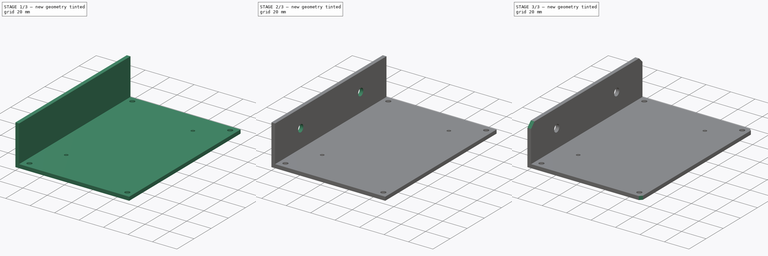
[diagram: build sequence overview — one tinted view per stage of 3, left to right]
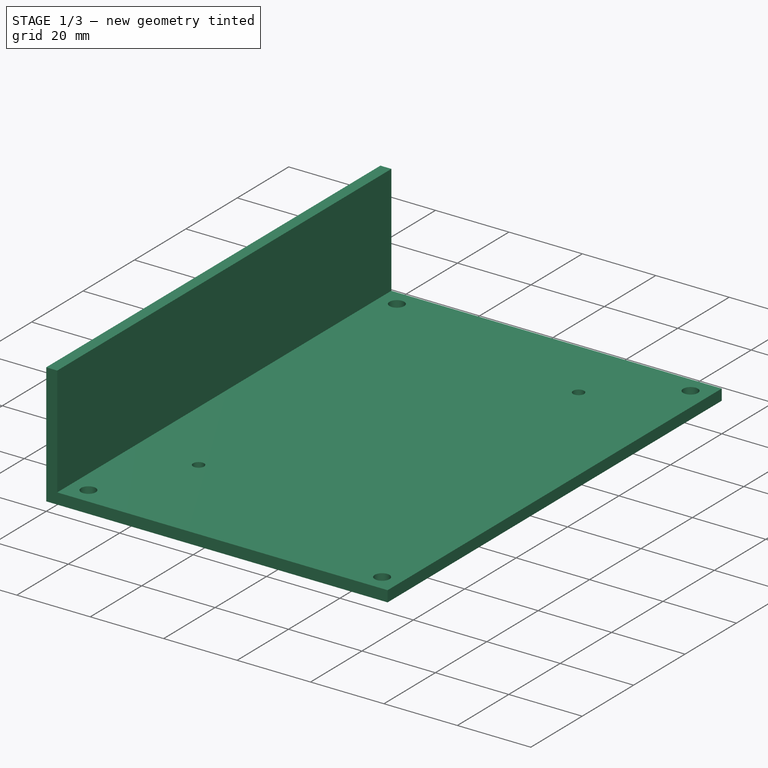
[diagram: stage 1 of 3 — iso view after this stage's code; geometry added in this stage tinted green]
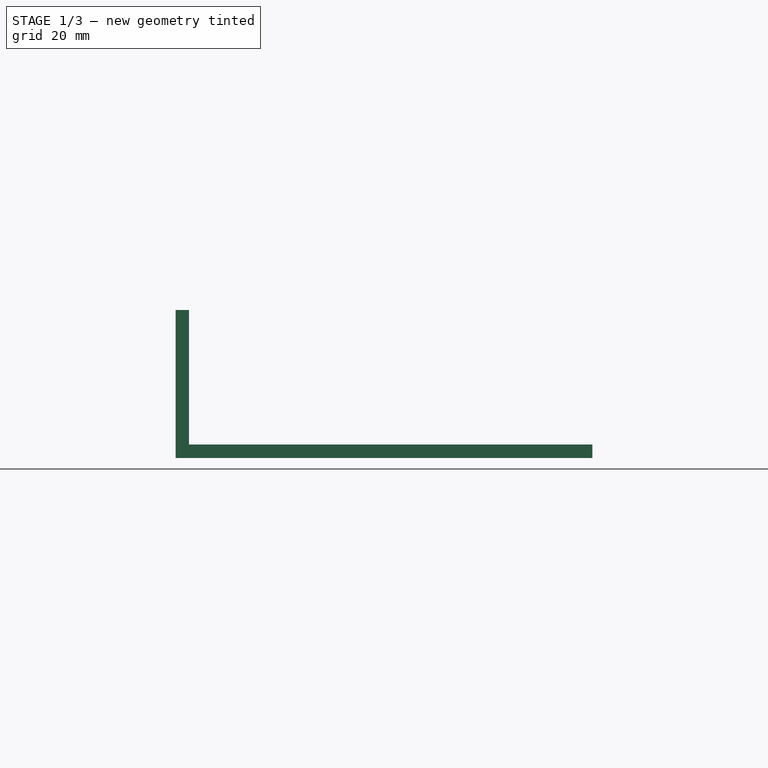
[diagram: stage 1 of 3 — front view after this stage's code; geometry added in this stage tinted green]
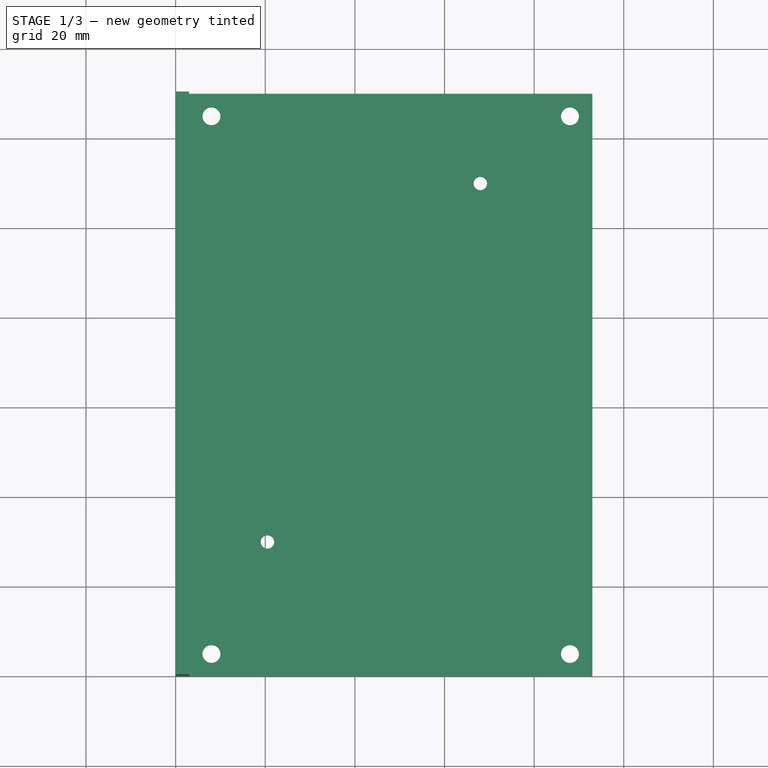
[diagram: stage 1 of 3 — top view after this stage's code; geometry added in this stage tinted green]
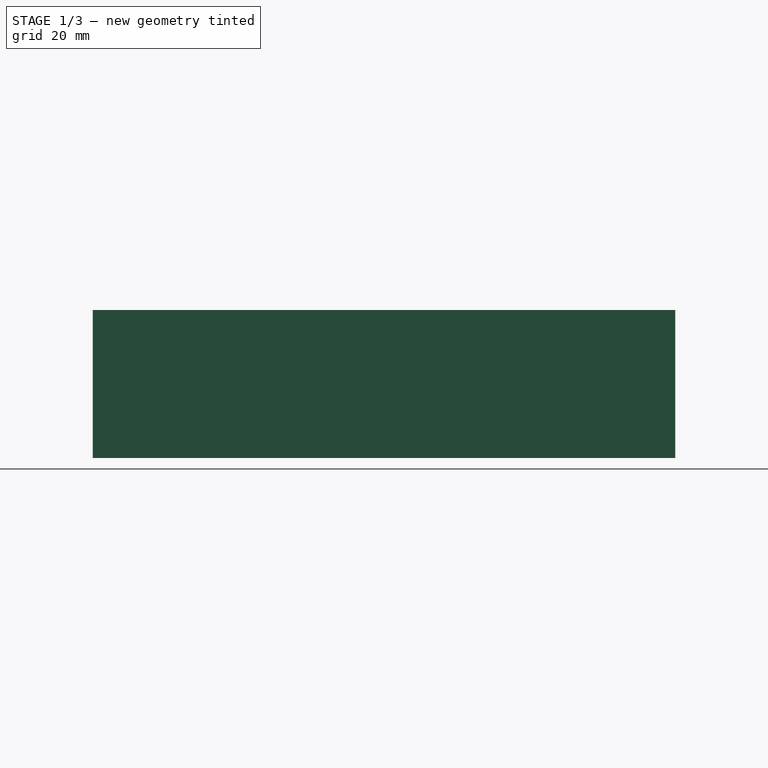
[diagram: stage 1 of 3 — right view after this stage's code; geometry added in this stage tinted green]
FCSTD DOCUMENT  (FreeCAD 0.18R14555 (Git shallow))
Label: controller-mount
License: All rights reserved
LicenseURL: http://en.wikipedia.org/wiki/All_rights_reserved
objects: Sketcher::SketchObject×3, PartDesign::Pad×2, PartDesign::Chamfer×2, PartDesign::Pocket×1, PartDesign::Body×1
note: 12 computed .brp shape members not serialized (recipe doc carries the construction recipe); baked Part::Feature solids carry a one-line shape summary decoded from their .brp

FEATURE [Sketcher::SketchObject] Sketch
  MapMode = 5
  Support = -> [XY_Plane]
  sketch-geometry (22):
    g0: LineSegment [constr] StartX=18 StartY=15 StartZ=0 EndX=78 EndY=15 EndZ=0
    g1: LineSegment [constr] StartX=78 StartY=15 StartZ=0 EndX=78 EndY=115 EndZ=0
    g2: LineSegment [constr] StartX=78 StartY=115 StartZ=0 EndX=18 EndY=115 EndZ=0
    g3: LineSegment [constr] StartX=18 StartY=115 StartZ=0 EndX=18 EndY=15 EndZ=0
    g4: Circle CenterX=20.5 CenterY=30 CenterZ=0 NormalX=0 NormalY=0 NormalZ=1 AngleXU=0 Radius=1.5
    g5: Circle CenterX=68 CenterY=110 CenterZ=0 NormalX=0 NormalY=0 NormalZ=1 AngleXU=0 Radius=1.5
    g6: LineSegment StartX=93 StartY=0 StartZ=0 EndX=0 EndY=0 EndZ=0
    g7: LineSegment StartX=0 StartY=0 StartZ=0 EndX=0 EndY=130 EndZ=0
    g8: LineSegment StartX=0 StartY=130 StartZ=0 EndX=93 EndY=130 EndZ=0
    g9: LineSegment StartX=93 StartY=130 StartZ=0 EndX=93 EndY=0 EndZ=0
    g10: LineSegment [constr] StartX=3 StartY=130 StartZ=0 EndX=3 EndY=0 EndZ=0
    g11: LineSegment [constr] StartX=78 StartY=115 StartZ=0 EndX=93 EndY=130 EndZ=0
    g12: LineSegment [constr] StartX=18 StartY=115 StartZ=0 EndX=3 EndY=130 EndZ=0
    g13: LineSegment [constr] StartX=78 StartY=15 StartZ=0 EndX=93 EndY=0 EndZ=0
    g14: LineSegment [constr] StartX=8 StartY=125 StartZ=0 EndX=88 EndY=125 EndZ=0
    g15: LineSegment [constr] StartX=88 StartY=125 StartZ=0 EndX=88 EndY=5 EndZ=0
    g16: LineSegment [constr] StartX=88 StartY=5 StartZ=0 EndX=8 EndY=5 EndZ=0
    g17: LineSegment [constr] StartX=8 StartY=5 StartZ=0 EndX=8 EndY=125 EndZ=0
    g18: Circle CenterX=8 CenterY=125 CenterZ=0 NormalX=0 NormalY=0 NormalZ=1 AngleXU=0 Radius=2
    g19: Circle CenterX=88 CenterY=125 CenterZ=0 NormalX=0 NormalY=0 NormalZ=1 AngleXU=0 Radius=2
    g20: Circle CenterX=88 CenterY=5 CenterZ=0 NormalX=0 NormalY=0 NormalZ=1 AngleXU=0 Radius=2
    g21: Circle CenterX=8 CenterY=5 CenterZ=0 NormalX=0 NormalY=0 NormalZ=1 AngleXU=0 Radius=2
  constraints (59):
    c: Coincident(g0,g1)
    c: Coincident(g1,g2)
    c: Coincident(g2,g3)
    c: Coincident(g3,g0)
    c: Horizontal(g0)
    c: Horizontal(g2)
    c: Vertical(g1)
    c: Vertical(g3)
    c: DistanceX(g2,g2) = 60
    c: DistanceY(g1,g1) = 100
    c: DistanceY(g5,g1) = 5
    c: DistanceX(g5,g1) = 10
    c: DistanceX(g0,g4) = 2.5
    c: DistanceY(g0,g4) = 15
    c: Equal(g4,g5)
    c: Radius(g5) = 1.5
    c: Coincident(g6,g7)
    c: Coincident(g7,g8)
    c: Coincident(g8,g9)
    c: Coincident(g9,g6)
    c: Horizontal(g6)
    c: Horizontal(g8)
    c: Vertical(g7)
    c: Vertical(g9)
    c: PointOnObject(g10,g6)
    c: Vertical(g10)
    c: DistanceX(g7,g10) = 3
    c: Coincident(g11,g1)
    c: Coincident(g11,g8)
    c: Coincident(g12,g2)
    c: Coincident(g13,g0)
    c: Coincident(g13,g6)
    c: PointOnObject(g10,g8)
    c: Coincident(g12,g10)
    c: Equal(g13,g11)
    c: Equal(g11,g12)
    c: DistanceY(g1,g8) = 15
    c: DistanceX(g1,g8) = 15
    c: Coincident(g14,g15)
    c: Coincident(g15,g16)
    c: Coincident(g16,g17)
    c: Coincident(g17,g14)
    c: Horizontal(g14)
    c: Horizontal(g16)
    c: Vertical(g15)
    c: Vertical(g17)
    c: Coincident(g18,g14)
    c: Coincident(g19,g14)
    c: Coincident(g20,g15)
    c: Coincident(g21,g16)
    c: Equal(g21,g20)
    c: Equal(g20,g19)
    c: Equal(g19,g18)
    c: Radius(g18) = 2
    c: PointOnObject(g18,g12)
    c: PointOnObject(g19,g11)
    c: PointOnObject(g20,g13)
    c: Coincident(g6,g-1)
    c: DistanceX(g10,g18) = 5
FEATURE [PartDesign::Pad] Pad
  Length = 3
  Length2 = 100
  Profile = -> Sketch
  Type = 0
FEATURE [Sketcher::SketchObject] Sketch001
  ExternalGeometry = -> [Pad]
  MapMode = 5
  Placement = pos=(0,0,3) rot=(0,0,1;0rad)
  Support = -> [Pad]
  sketch-geometry (4):
    g0: LineSegment StartX=0 StartY=130 StartZ=0 EndX=3 EndY=130 EndZ=0
    g1: LineSegment StartX=3 StartY=130 StartZ=0 EndX=3 EndY=0 EndZ=0
    g2: LineSegment StartX=3 StartY=0 StartZ=0 EndX=0 EndY=0 EndZ=0
    g3: LineSegment StartX=0 StartY=0 StartZ=0 EndX=0 EndY=130 EndZ=0
  constraints (11):
    c: Coincident(g0,g1)
    c: Coincident(g1,g2)
    c: Coincident(g2,g3)
    c: Coincident(g3,g0)
    c: Horizontal(g0)
    c: Horizontal(g2)
    c: Vertical(g1)
    c: Vertical(g3)
    c: Coincident(g0,g-3)
    c: PointOnObject(g1,g-1)
    c: DistanceX(g0,g0) = 3
FEATURE [PartDesign::Pad] Pad001
  BaseFeature = -> Pad
  Length = 30
  Length2 = 100
  Profile = -> Sketch001
  Type = 0
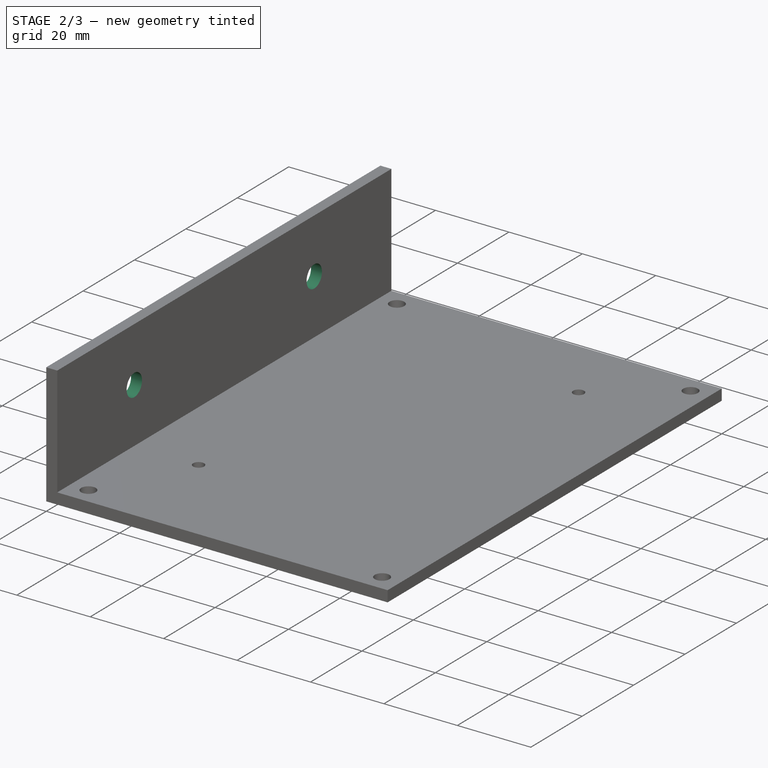
[diagram: stage 2 of 3 — iso view after this stage's code; geometry added in this stage tinted green]
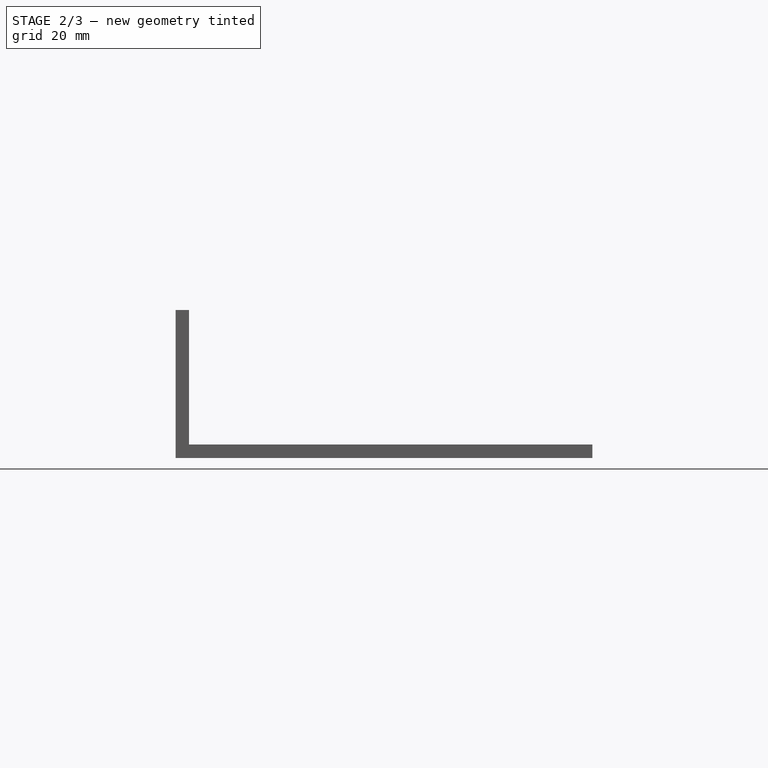
[diagram: stage 2 of 3 — front view after this stage's code; geometry added in this stage tinted green]
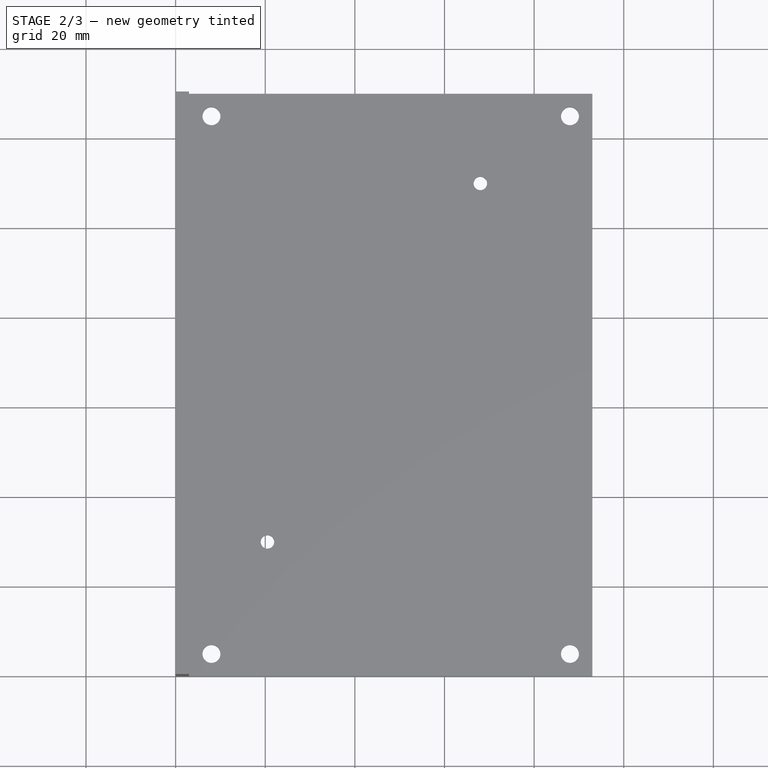
[diagram: stage 2 of 3 — top view after this stage's code; geometry added in this stage tinted green]
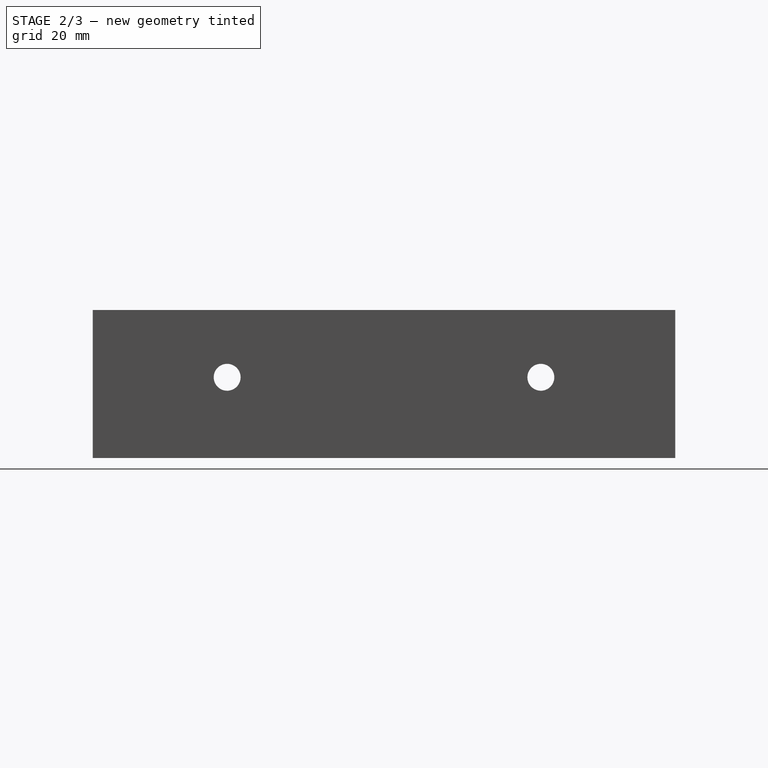
[diagram: stage 2 of 3 — right view after this stage's code; geometry added in this stage tinted green]
FEATURE [Sketcher::SketchObject] Sketch002
  ExternalGeometry = -> [Pad001]
  MapMode = 5
  Placement = pos=(3,0,0) rot=(0.57735,0.57735,0.57735;2.0944rad)
  Support = -> [Pad001]
  sketch-geometry (6):
    g0: Circle CenterX=30 CenterY=18 CenterZ=0 NormalX=0 NormalY=0 NormalZ=1 AngleXU=0 Radius=3
    g1: Circle CenterX=100 CenterY=18 CenterZ=0 NormalX=0 NormalY=0 NormalZ=1 AngleXU=0 Radius=3
    g2: LineSegment [constr] StartX=130 StartY=33 StartZ=0 EndX=100 EndY=18 EndZ=0
    g3: LineSegment [constr] StartX=100 StartY=18 StartZ=0 EndX=30 EndY=18 EndZ=0
    g4: LineSegment [constr] StartX=30 StartY=18 StartZ=0 EndX=0 EndY=33 EndZ=0
    g5: LineSegment [constr] StartX=30 StartY=18 StartZ=0 EndX=0 EndY=3 EndZ=0
  constraints (14):
    c: Coincident(g2,g-3)
    c: Coincident(g2,g1)
    c: Coincident(g3,g1)
    c: Coincident(g3,g0)
    c: Horizontal(g3)
    c: Coincident(g4,g0)
    c: Coincident(g4,g-3)
    c: Coincident(g5,g0)
    c: Coincident(g5,g-4)
    c: Equal(g4,g5)
    c: Equal(g5,g2)
    c: Equal(g0,g1)
    c: Radius(g0) = 3
    c: DistanceX(g4,g0) = 30
FEATURE [PartDesign::Pocket] Pocket
  BaseFeature = -> Pad001
  Length = 5
  Length2 = 100
  Profile = -> Sketch002
  Type = 1
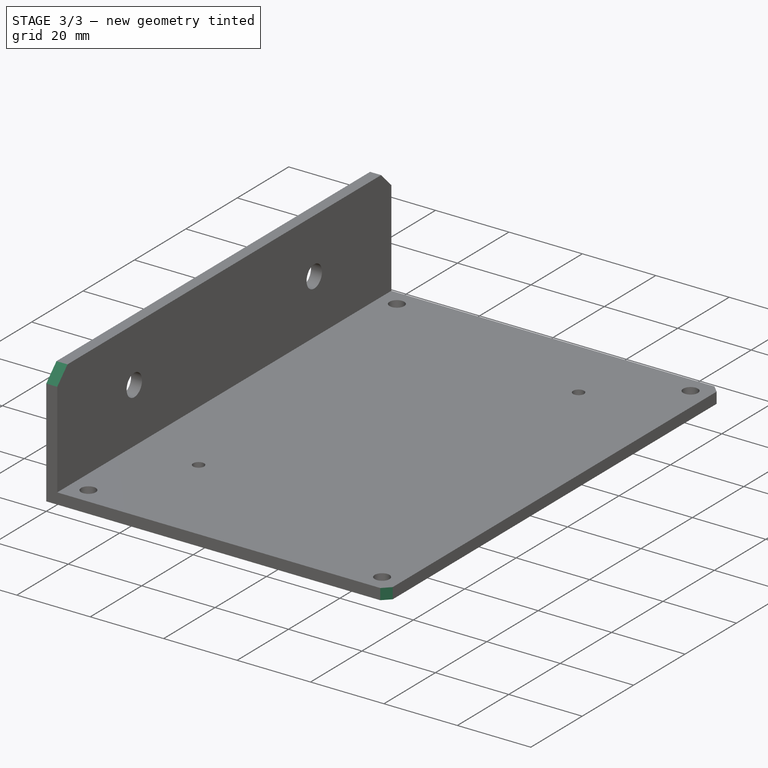
[diagram: stage 3 of 3 — iso view after this stage's code; geometry added in this stage tinted green]
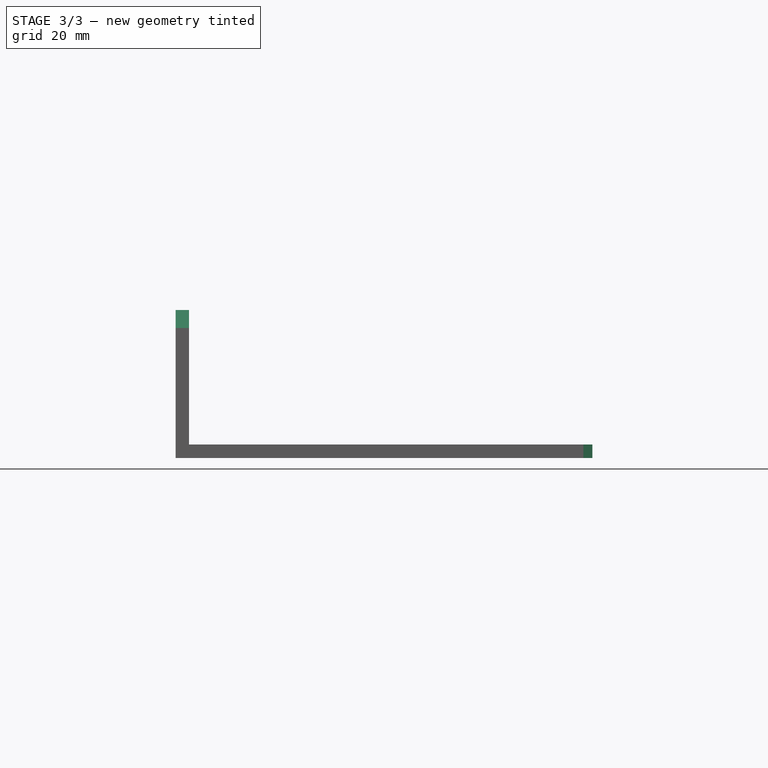
[diagram: stage 3 of 3 — front view after this stage's code; geometry added in this stage tinted green]
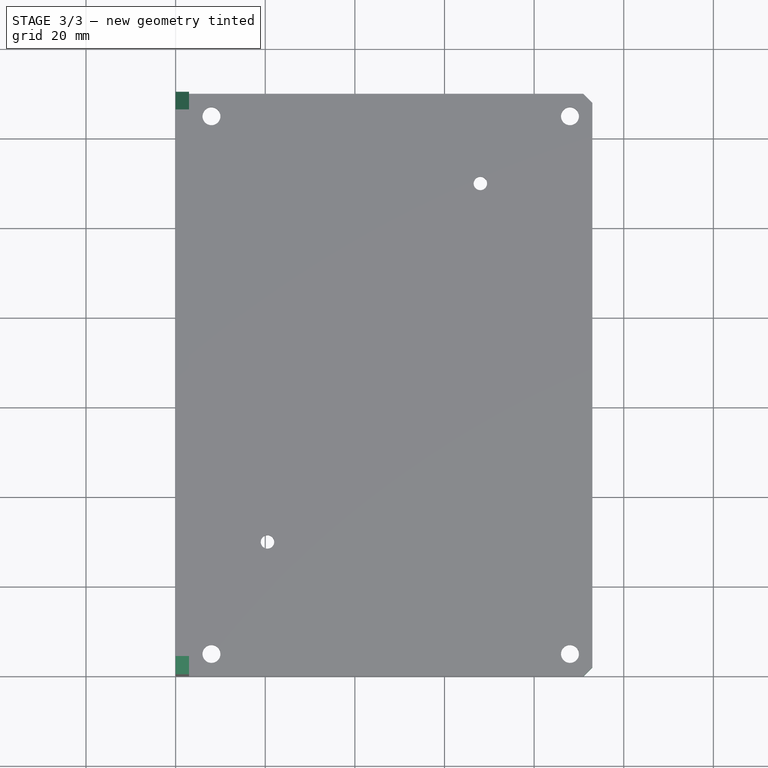
[diagram: stage 3 of 3 — top view after this stage's code; geometry added in this stage tinted green]
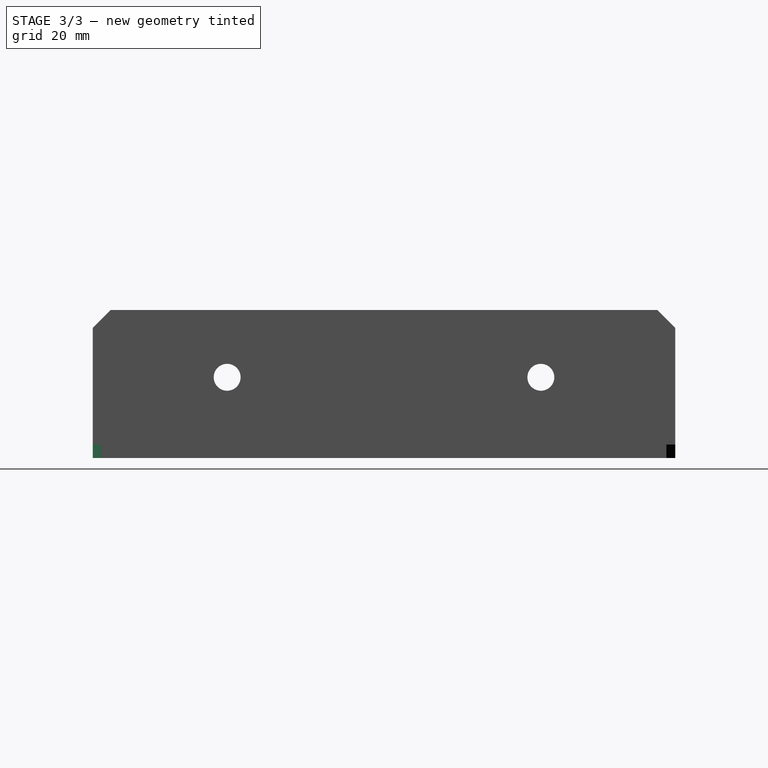
[diagram: stage 3 of 3 — right view after this stage's code; geometry added in this stage tinted green]
FEATURE [PartDesign::Chamfer] Chamfer
  Base = -> Pocket [Edge1,Edge6]
  BaseFeature = -> Pocket
  Size = 2
FEATURE [PartDesign::Chamfer] Chamfer001
  Base = -> Chamfer [Edge33,Edge51]
  BaseFeature = -> Chamfer
  Size = 4
FEATURE [PartDesign::Body] Body
  Group = -> [Sketch,Pad,Sketch001,Pad001,Sketch002,Pocket,Chamfer,Chamfer001]
  Origin = -> Origin
  Tip = -> Chamfer001
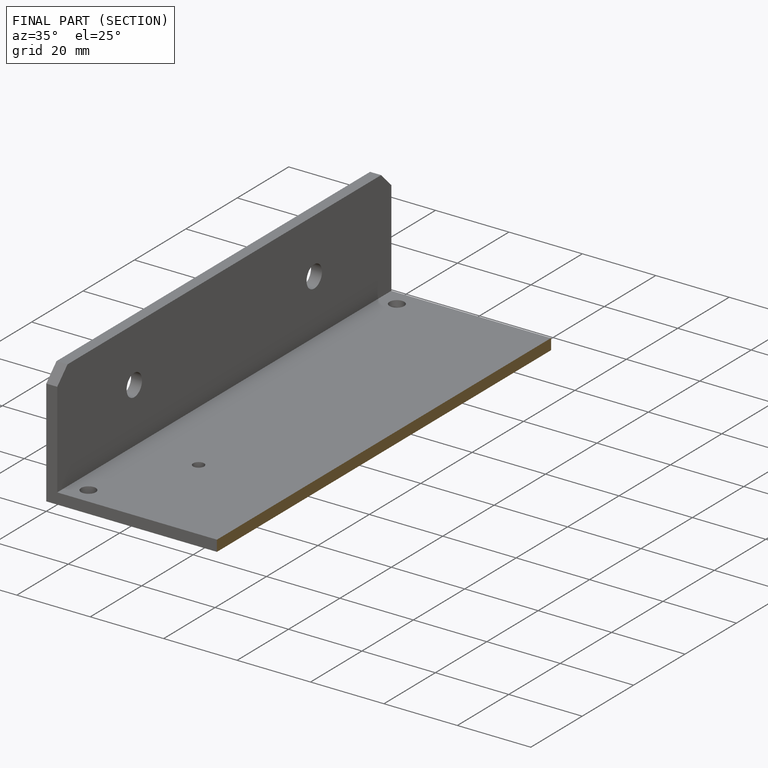
[diagram: finished part — half-section view (interior)]
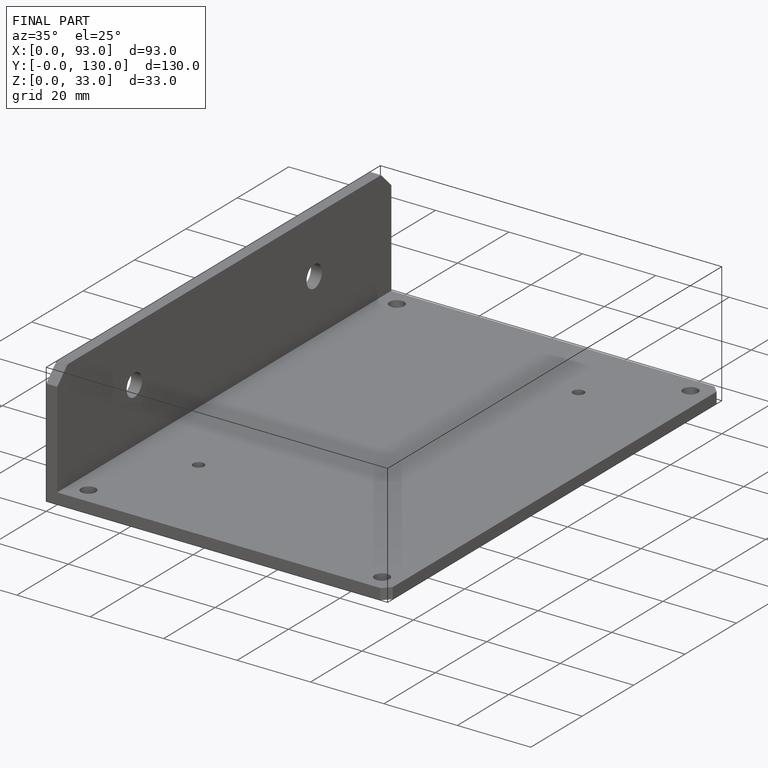
[diagram: finished part — iso view with bounding-box wireframe]
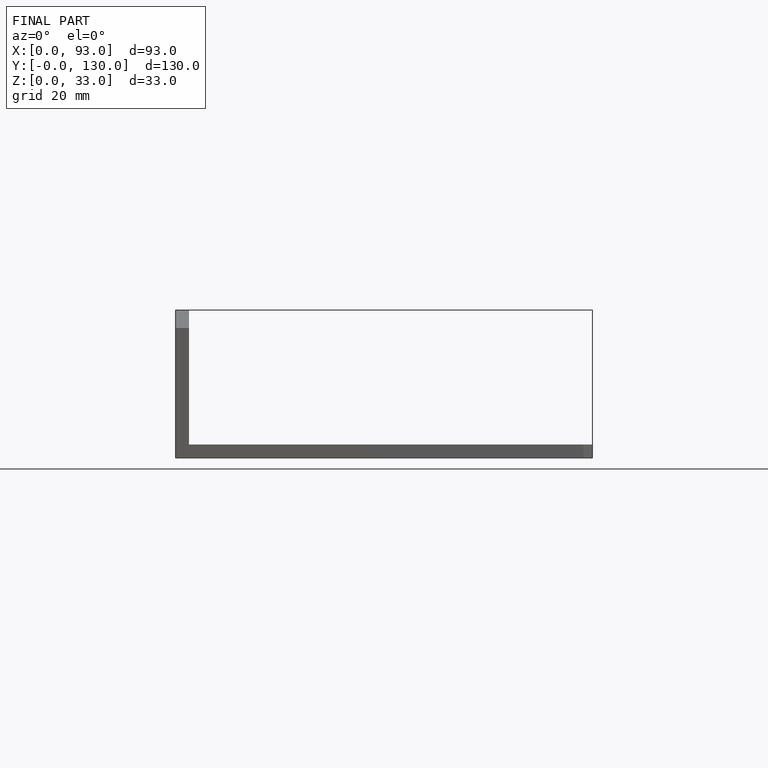
[diagram: finished part — front view with bounding-box wireframe]
